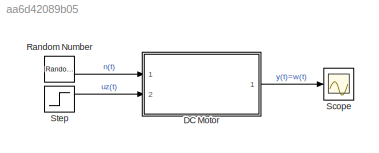
MODEL slx_aa6d42089b05
KIND model
CONFIG AbsTol = auto
CONFIG EnableMultiTasking = on
CONFIG FixedStep = 0.001
CONFIG MaxStep = auto
CONFIG MinStep = auto
CONFIG RelTol = 1e-3
CONFIG SampleTimeConstraint = Unconstrained
CONFIG Solver = ode3
CONFIG SolverName = ode3
CONFIG StartTime = 0.0
CONFIG StopTime = 0.5
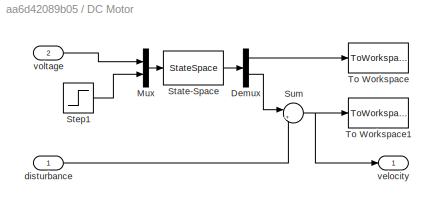
BLOCK [SubSystem] DC Motor
  Ports = [2, 1]
BLOCK [Demux] DC Motor/Demux
  Outputs = 2
  Ports = [1, 2]
BLOCK [Mux] DC Motor/Mux
  DisplayOption = bar
  Inputs = 2
  Ports = [2, 1]
BLOCK [StateSpace] DC Motor/State-Space
  A = [-3/0.05, -2.23/0.05; 2.23/0.11, 0]
  B = [1/0.05 0; 0 -1/0.11]
  C = [1 0;0 1]
  D = [0 0; 0 0]
  InitialCondition = [0 ;40]
  Ports = [1, 1]
BLOCK [Step] DC Motor/Step1
  After = 44.6
  SampleTime = 0
  Time = 0.5
BLOCK [Sum] DC Motor/Sum
  Inputs = |++
  Ports = [2, 1]
BLOCK [ToWorkspace] DC Motor/To Workspace
  FixptAsFi = on
  MaxDataPoints = inf
  Ports = [1]
  SampleTime = -1
  VariableName = i_meas
BLOCK [ToWorkspace] DC Motor/To Workspace1
  FixptAsFi = on
  MaxDataPoints = inf
  Ports = [1]
  SampleTime = -1
  VariableName = w_meas
BLOCK [Inport] DC Motor/disturbance
BLOCK [Outport] DC Motor/velocity
  VectorParamsAs1DForOutWhenUnconnected = off
BLOCK [Inport] DC Motor/voltage
  Port = 2
BLOCK [RandomNumber] Random Number
  Variance = 0
BLOCK [Scope] Scope
  Floating = off
  NumInputPorts = 1
  Ports = [1]
  ScopeSpecificationString = Simulink.scopes.TimeScopeBlockCfg('CurrentConfiguration', extmgr.ConfigurationSet(extmgr.Configuration('Core','General UI',true),extmgr.Configuration('Core','Source UI',true),extmgr.Configuration('Sources','WiredSimulink',true),extmgr.Configuration('Visuals','Time Domain',true,'SerializedDisplays',{struct('MinYLimReal','-9.37758','MaxYLimReal','59.55035','YLabelReal','','MinYLimMag','0.00000','Max...<+1362ch>
BLOCK [Step] Step
  After = 300
  SampleTime = 0
  Time = 0
LINE DC Motor/Demux:1 -> DC Motor/To Workspace:1
LINE DC Motor/Demux:2 -> DC Motor/Sum:1
LINE DC Motor/Mux:1 -> DC Motor/State-Space:1
LINE DC Motor/State-Space:1 -> DC Motor/Demux:1
LINE DC Motor/Step1:1 -> DC Motor/Mux:2
NET DC Motor/Sum:1 -> DC Motor/To Workspace1:1, DC Motor/velocity:1
LINE DC Motor/disturbance:1 -> DC Motor/Sum:2
LINE DC Motor/voltage:1 -> DC Motor/Mux:1
LINE DC Motor:1 -> Scope:1
LINE Random Number:1 -> DC Motor:1
LINE Step:1 -> DC Motor:2
note: NET lines group one-source signal fan-out (src -> all destinations, sorted); 1:1 wires keep LINE
